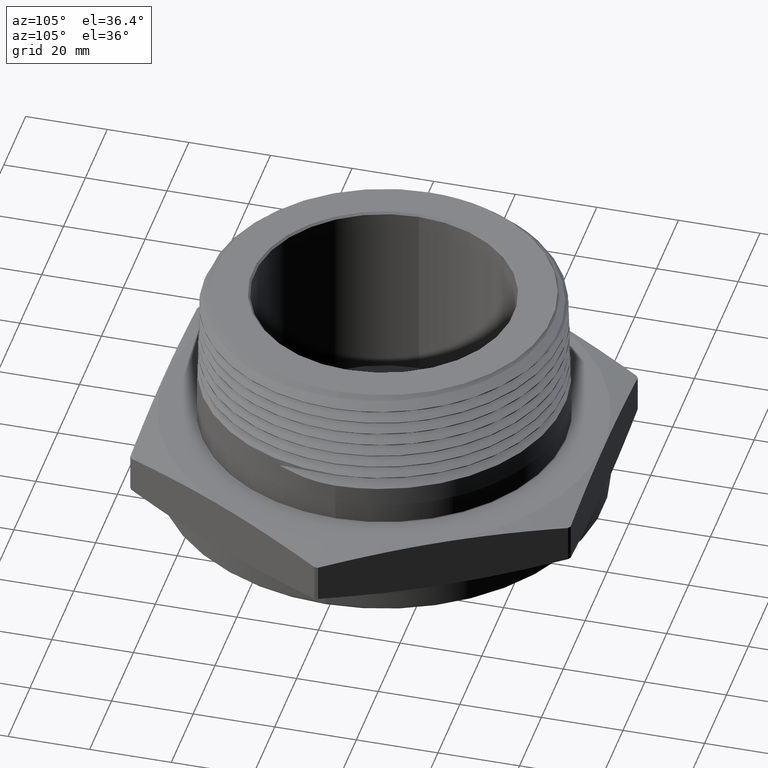
[diagram: clean part render]
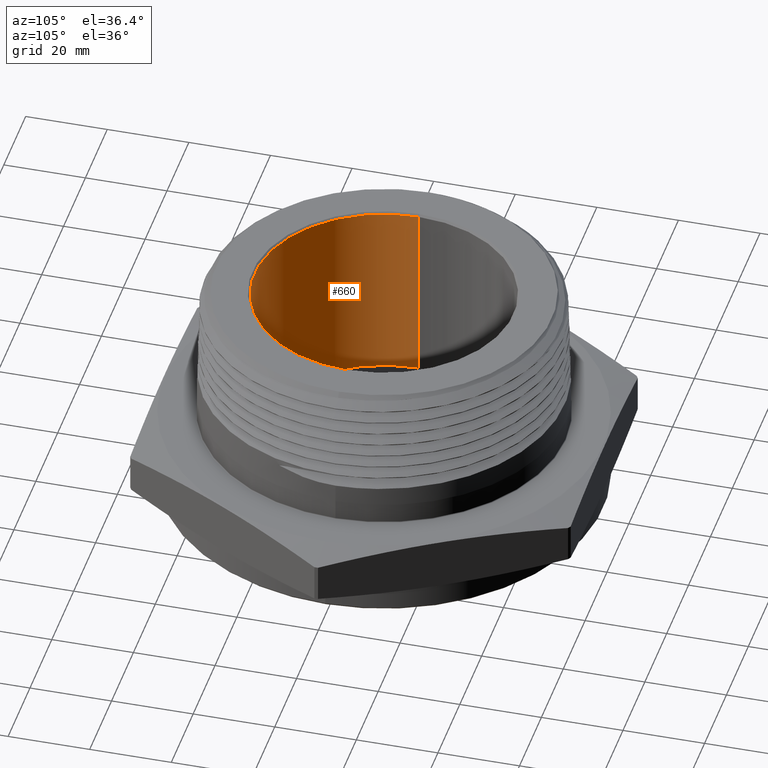
[diagram: same view with one face highlighted and labeled with its STEP entity id]
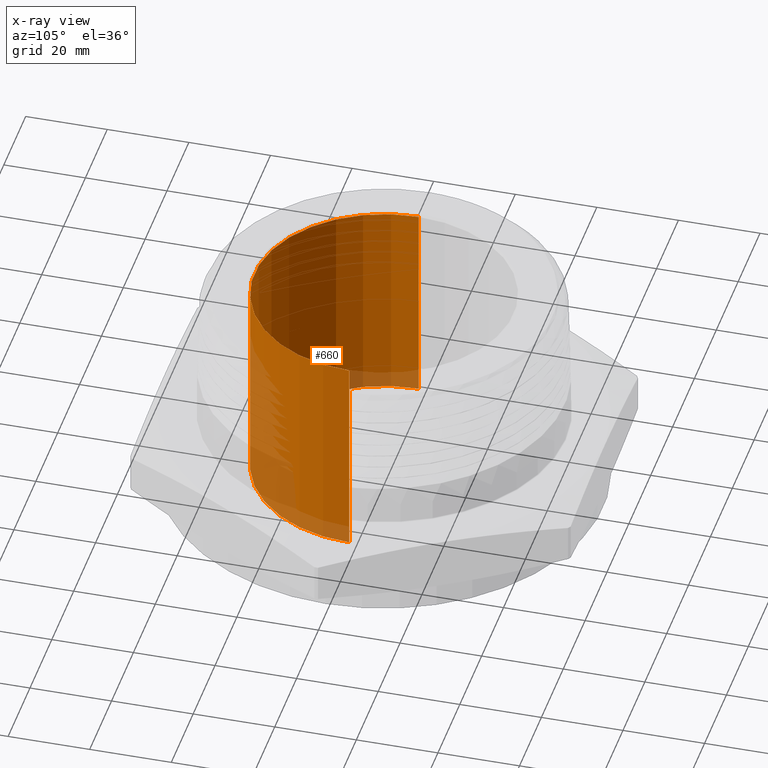
[diagram: x-ray of the same camera — body ghosted, the highlighted face saturated]
A machine part, auxiliary view. The second image highlights one B-rep face of the part: STEP entity #660.
The next image is the same camera in x-ray: the body ghosted, the highlighted face saturated — about 16% of this face is hidden behind the body in this view.
In plain terms, the highlighted cylindrical surface (partial cylindrical patch) has radius 31.75 mm, axis along (0, -0, -1).
Its self-contained STEP definition (entity closure, byte-faithful):
#660 = ADVANCED_FACE ( 'NONE', ( #6164 ), #6167, .F. ) ;
#1418 = DIRECTION ( 'NONE',  ( 3.475283666183381100E-018, -0.0000000000000000000, -1.000000000000000000 ) ) ;
#1423 = CARTESIAN_POINT ( 'NONE',  ( 1.250000000000000000, 1.530808498934191600E-016, -0.2500000000000000000 ) ) ;
#1424 = CARTESIAN_POINT ( 'NONE',  ( 4.481553156647320800E-018, 0.0000000000000000000, -0.1299999999999999500 ) ) ;
#1425 = DIRECTION ( 'NONE',  ( 3.475283666183381100E-018, -0.0000000000000000000, -1.000000000000000000 ) ) ;
#1426 = DIRECTION ( 'NONE',  ( -1.000000000000000000, 0.0000000000000000000, 0.0000000000000000000 ) ) ;
#1435 = CARTESIAN_POINT ( 'NONE',  ( -2.434261339057606700E-018, 0.0000000000000000000, 1.859999999999999700 ) ) ;
#1436 = DIRECTION ( 'NONE',  ( 3.475283666183381100E-018, -0.0000000000000000000, -1.000000000000000000 ) ) ;
#1437 = DIRECTION ( 'NONE',  ( -1.000000000000000000, 0.0000000000000000000, 0.0000000000000000000 ) ) ;
#1539 = CARTESIAN_POINT ( 'NONE',  ( -1.250000000000000000, 0.0000000000000000000, -0.2500000000000000000 ) ) ;
#1540 = DIRECTION ( 'NONE',  ( 3.475283666183381100E-018, -0.0000000000000000000, -1.000000000000000000 ) ) ;
#2296 = CARTESIAN_POINT ( 'NONE',  ( 1.249999999999999800, 1.530808498934191100E-016, 1.859999999999999700 ) ) ;
#2300 = CARTESIAN_POINT ( 'NONE',  ( -1.249999999999999800, 0.0000000000000000000, 1.859999999999999700 ) ) ;
#2301 = CARTESIAN_POINT ( 'NONE',  ( -1.250000000000000000, 0.0000000000000000000, -0.1299999999999999500 ) ) ;
#2303 = CARTESIAN_POINT ( 'NONE',  ( 1.250000000000000000, 1.530808498934191600E-016, -0.1299999999999999500 ) ) ;
#3524 = VERTEX_POINT ( 'NONE', #2296 ) ;
#3528 = VERTEX_POINT ( 'NONE', #2300 ) ;
#3529 = VERTEX_POINT ( 'NONE', #2301 ) ;
#3531 = VERTEX_POINT ( 'NONE', #2303 ) ;
#3594 = ORIENTED_EDGE ( 'NONE', *, *, #7136, .F. ) ;
#3595 = ORIENTED_EDGE ( 'NONE', *, *, #5735, .T. ) ;
#3596 = ORIENTED_EDGE ( 'NONE', *, *, #5736, .T. ) ;
#3597 = ORIENTED_EDGE ( 'NONE', *, *, #5739, .F. ) ;
#3672 = EDGE_LOOP ( 'NONE', ( #3597, #3596, #3595, #3594 ) ) ;
#5735 = EDGE_CURVE ( 'NONE', #3531, #3529, #6264, .T. ) ;
#5736 = EDGE_CURVE ( 'NONE', #3524, #3531, #6261, .T. ) ;
#5739 = EDGE_CURVE ( 'NONE', #3524, #3528, #6270, .T. ) ;
#5765 = AXIS2_PLACEMENT_3D ( 'NONE', #6095, #6094, #6096 ) ;
#5812 = AXIS2_PLACEMENT_3D ( 'NONE', #1424, #1425, #1426 ) ;
#5814 = AXIS2_PLACEMENT_3D ( 'NONE', #1435, #1436, #1437 ) ;
#6094 = DIRECTION ( 'NONE',  ( 3.475283666183381100E-018, -0.0000000000000000000, -1.000000000000000000 ) ) ;
#6095 = CARTESIAN_POINT ( 'NONE',  ( 4.898587196589325700E-018, 0.0000000000000000000, -0.2500000000000000000 ) ) ;
#6096 = DIRECTION ( 'NONE',  ( -1.000000000000000000, 0.0000000000000000000, 0.0000000000000000000 ) ) ;
#6164 = FACE_OUTER_BOUND ( 'NONE', #3672, .T. ) ;
#6167 = CYLINDRICAL_SURFACE ( 'NONE', #5765, 1.250000000000000000 ) ;
#6261 = LINE ( 'NONE', #1423, #6267 ) ;
#6264 = CIRCLE ( 'NONE', #5812, 1.250000000000000000 ) ;
#6267 = VECTOR ( 'NONE', #1418, 39.37007874015748100 ) ;
#6270 = CIRCLE ( 'NONE', #5814, 1.249999999999999800 ) ;
#6311 = LINE ( 'NONE', #1539, #6313 ) ;
#6313 = VECTOR ( 'NONE', #1540, 39.37007874015748100 ) ;
#7136 = EDGE_CURVE ( 'NONE', #3528, #3529, #6311, .T. ) ;